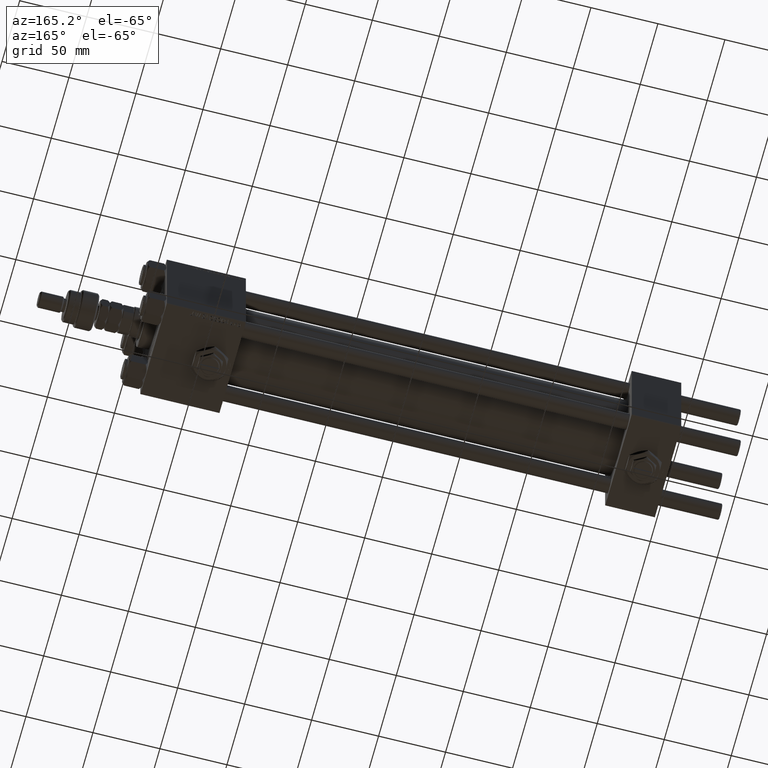
[diagram: clean part render]
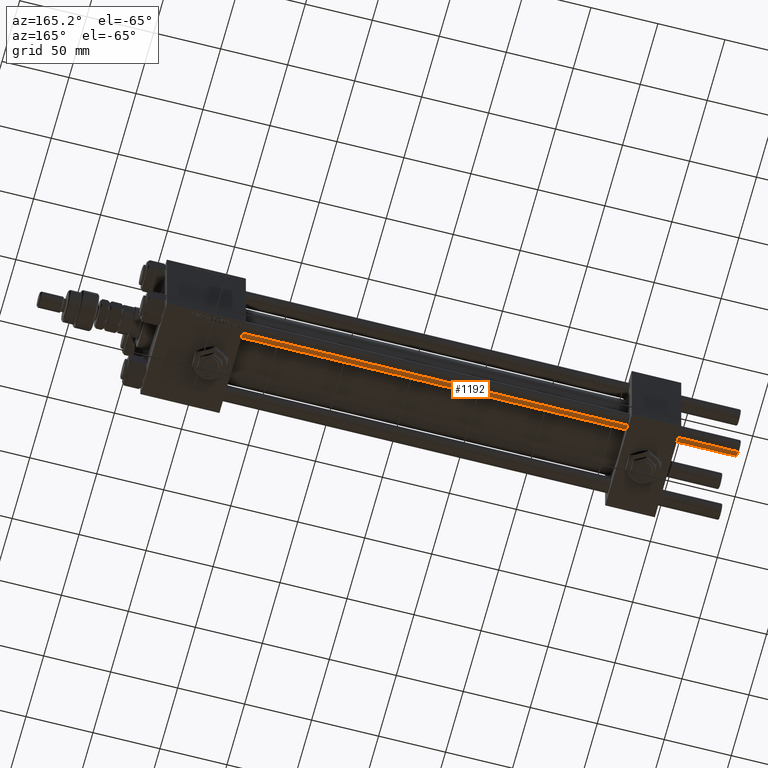
[diagram: same view with one face highlighted and labeled with its STEP entity id]
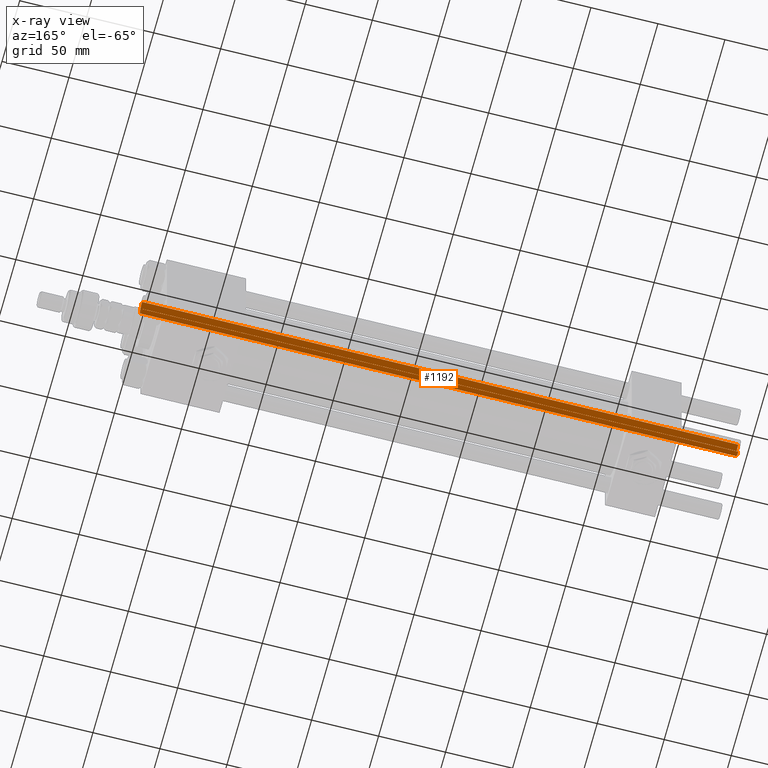
[diagram: x-ray of the same camera — body ghosted, the highlighted face saturated]
A machine part, auxiliary view. The second image highlights one B-rep face of the part: STEP entity #1192.
The next image is the same camera in x-ray: the body ghosted, the highlighted face saturated — about 0% of this face is hidden behind the body in this view.
In plain terms, the highlighted cylindrical surface (edge-blend (fillet) strip) has radius 6 mm, axis along (1, 0, -0).
Its self-contained STEP definition (entity closure, byte-faithful):
#1192 = ADVANCED_FACE ( 'NONE', ( #36742 ), #45797, .T. ) ;
#2846 = CARTESIAN_POINT ( 'NONE',  ( -6.000000000000000888, 0.000000000000000000, 445.5000000000003411 ) ) ;
#2996 = EDGE_CURVE ( 'NONE', #29438, #44450, #34368, .T. ) ;
#4971 = DIRECTION ( 'NONE',  ( -0.000000000000000000, -0.000000000000000000, -1.000000000000000000 ) ) ;
#5447 = ORIENTED_EDGE ( 'NONE', *, *, #2996, .T. ) ;
#6889 = DIRECTION ( 'NONE',  ( -1.000000000000000000, 0.000000000000000000, 0.000000000000000000 ) ) ;
#9200 = CARTESIAN_POINT ( 'NONE',  ( 6.000000000000000888, 7.347880794884119736E-16, 0.5000000000003890221 ) ) ;
#10863 = DIRECTION ( 'NONE',  ( 1.000000000000000000, 0.000000000000000000, 0.000000000000000000 ) ) ;
#11196 = VERTEX_POINT ( 'NONE', #9200 ) ;
#12512 = DIRECTION ( 'NONE',  ( -0.000000000000000000, -0.000000000000000000, -1.000000000000000000 ) ) ;
#13343 = CARTESIAN_POINT ( 'NONE',  ( -6.000000000000000888, 0.000000000000000000, 446.0000000000000000 ) ) ;
#14831 = ORIENTED_EDGE ( 'NONE', *, *, #39823, .T. ) ;
#15144 = DIRECTION ( 'NONE',  ( -0.000000000000000000, -0.000000000000000000, 1.000000000000000000 ) ) ;
#15308 = DIRECTION ( 'NONE',  ( 0.000000000000000000, 0.000000000000000000, -1.000000000000000000 ) ) ;
#15596 = CARTESIAN_POINT ( 'NONE',  ( 6.000000000000000888, 7.347880794884119736E-16, 445.5000000000003411 ) ) ;
#16255 = CARTESIAN_POINT ( 'NONE',  ( 0.000000000000000000, 0.000000000000000000, 446.0000000000000000 ) ) ;
#16469 = CIRCLE ( 'NONE', #23541, 6.000000000000000888 ) ;
#19357 = ORIENTED_EDGE ( 'NONE', *, *, #42254, .T. ) ;
#23541 = AXIS2_PLACEMENT_3D ( 'NONE', #44858, #15308, #10863 ) ;
#26594 = CARTESIAN_POINT ( 'NONE',  ( -6.000000000000000888, 0.000000000000000000, 0.5000000000003890221 ) ) ;
#27184 = AXIS2_PLACEMENT_3D ( 'NONE', #52699, #15144, #32013 ) ;
#28181 = DIRECTION ( 'NONE',  ( -0.000000000000000000, -0.000000000000000000, -1.000000000000000000 ) ) ;
#29438 = VERTEX_POINT ( 'NONE', #2846 ) ;
#32013 = DIRECTION ( 'NONE',  ( 1.000000000000000000, 0.000000000000000000, 0.000000000000000000 ) ) ;
#32350 = VECTOR ( 'NONE', #12512, 1000.000000000000000 ) ;
#34368 = LINE ( 'NONE', #13343, #32350 ) ;
#35248 = ORIENTED_EDGE ( 'NONE', *, *, #50584, .F. ) ;
#36742 = FACE_OUTER_BOUND ( 'NONE', #47413, .T. ) ;
#37148 = VERTEX_POINT ( 'NONE', #15596 ) ;
#39823 = EDGE_CURVE ( 'NONE', #37148, #29438, #16469, .T. ) ;
#42254 = EDGE_CURVE ( 'NONE', #44450, #11196, #50956, .T. ) ;
#42817 = CARTESIAN_POINT ( 'NONE',  ( 6.000000000000000888, 7.347880794884119736E-16, 446.0000000000000000 ) ) ;
#44450 = VERTEX_POINT ( 'NONE', #26594 ) ;
#44858 = CARTESIAN_POINT ( 'NONE',  ( 0.000000000000000000, 0.000000000000000000, 445.5000000000003411 ) ) ;
#45797 = CYLINDRICAL_SURFACE ( 'NONE', #46336, 6.000000000000000888 ) ;
#46336 = AXIS2_PLACEMENT_3D ( 'NONE', #16255, #28181, #6889 ) ;
#46940 = LINE ( 'NONE', #42817, #51300 ) ;
#47413 = EDGE_LOOP ( 'NONE', ( #35248, #14831, #5447, #19357 ) ) ;
#50584 = EDGE_CURVE ( 'NONE', #37148, #11196, #46940, .T. ) ;
#50956 = CIRCLE ( 'NONE', #27184, 6.000000000000000888 ) ;
#51300 = VECTOR ( 'NONE', #4971, 1000.000000000000000 ) ;
#52699 = CARTESIAN_POINT ( 'NONE',  ( 0.000000000000000000, 0.000000000000000000, 0.5000000000003890221 ) ) ;